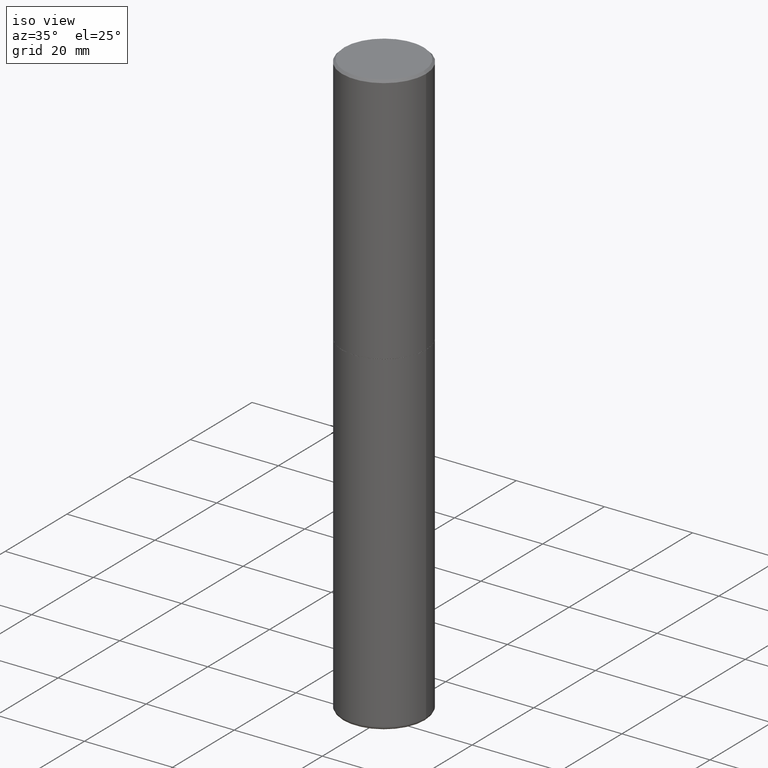
[diagram: clean part render]
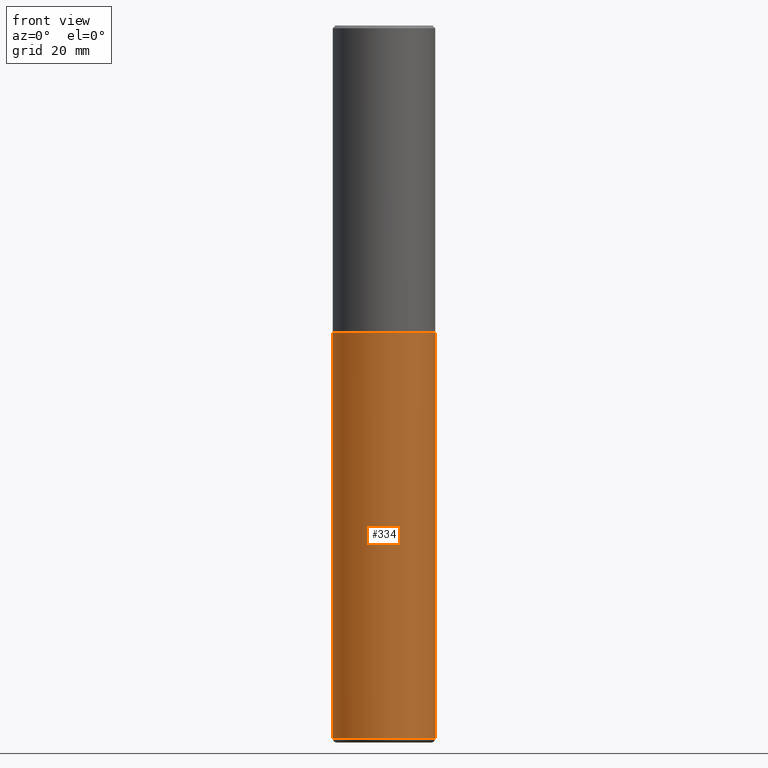
[diagram: tour spotlight — one face highlighted and labeled with its STEP entity id]
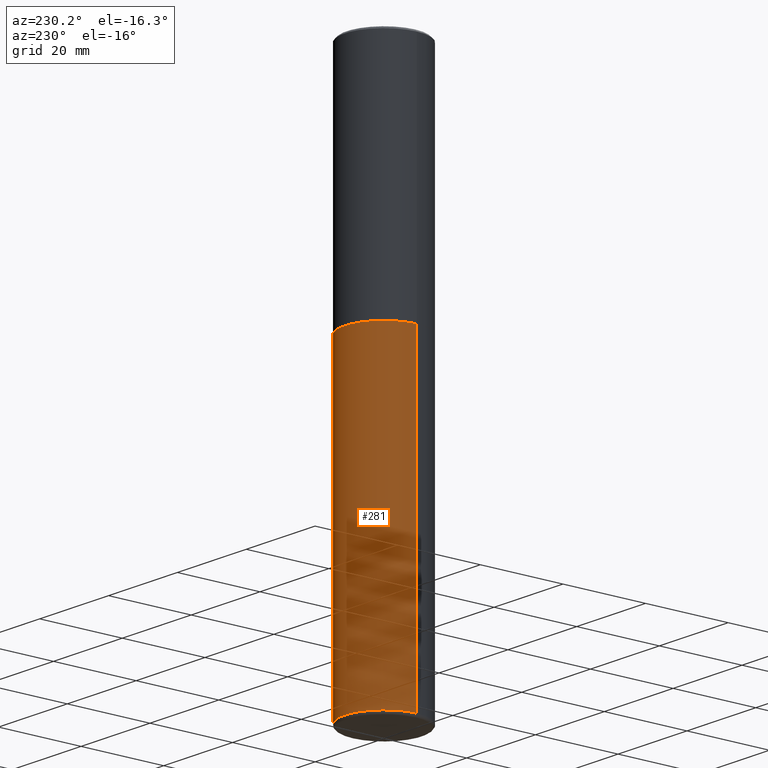
[diagram: tour spotlight — one face highlighted and labeled with its STEP entity id]
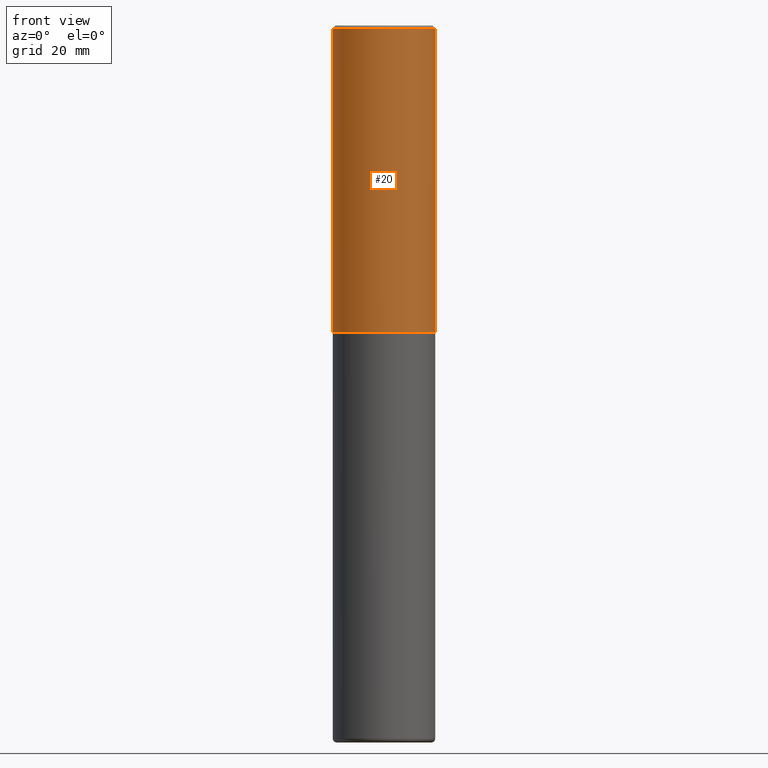
[diagram: tour spotlight — one face highlighted and labeled with its STEP entity id]
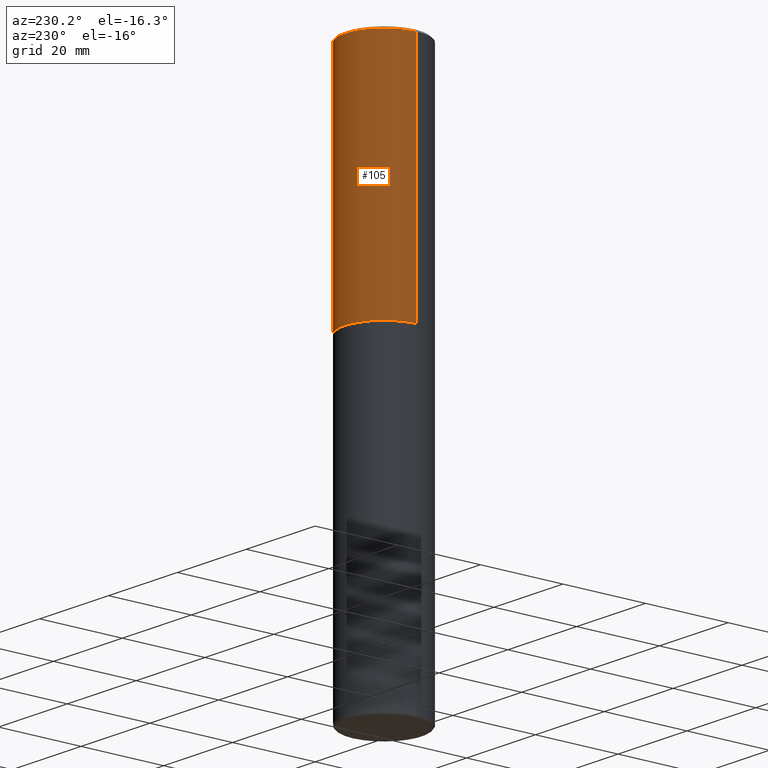
[diagram: tour spotlight — one face highlighted and labeled with its STEP entity id]
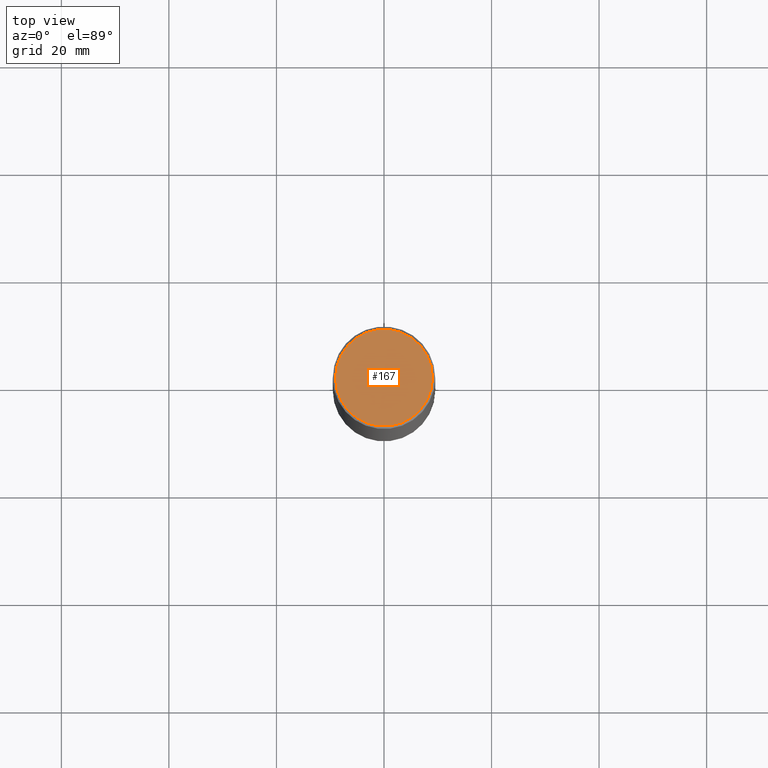
[diagram: tour spotlight — one face highlighted and labeled with its STEP entity id]
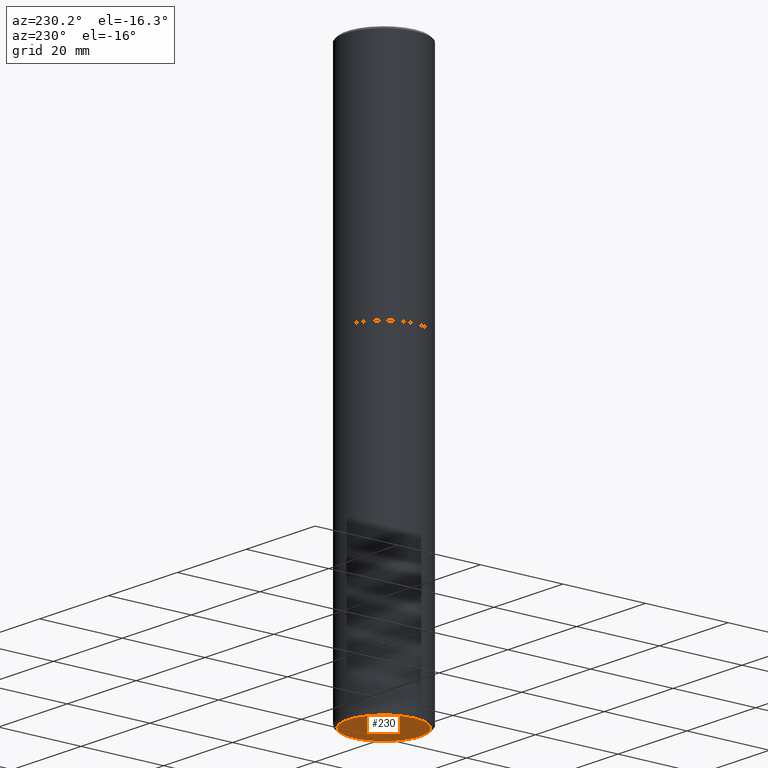
[diagram: tour spotlight — one face highlighted and labeled with its STEP entity id]
A machine part: a face-by-face anatomy tour. The part has 14 B-rep faces; the first image is the clean iso view, then the 6 largest visible faces are spotlighted one at a time (largest first), each with its STEP entity span.

Face 1 — front view, entity #334. In plain terms, the highlighted cylindrical surface (partial cylindrical patch) has radius 9.525 mm, axis along (-0, 0, 1).
Definition (entity closure, byte-faithful):
#1 = EDGE_LOOP ( 'NONE', ( #189, #202, #184, #107 ) ) ;
#21 = FACE_OUTER_BOUND ( 'NONE', #1, .T. ) ;
#72 = DIRECTION ( 'NONE',  ( -2.445468806185136597E-29, 3.491481338843145583E-15, 1.000000000000000000 ) ) ;
#74 = CARTESIAN_POINT ( 'NONE',  ( -0.3750000000000000555, 2.664535259100376091E-15, -1.844600658845589598E-29 ) ) ;
#88 = EDGE_CURVE ( 'NONE', #392, #292, #267, .T. ) ;
#94 = EDGE_CURVE ( 'NONE', #327, #392, #208, .T. ) ;
#104 = VERTEX_POINT ( 'NONE', #113 ) ;
#107 = ORIENTED_EDGE ( 'NONE', *, *, #88, .F. ) ;
#113 = CARTESIAN_POINT ( 'NONE',  ( 0.3750000000000001110, -2.084414359289356356E-14, -5.219999999999997975 ) ) ;
#118 = CIRCLE ( 'NONE', #127, 0.3750000000000000555 ) ;
#122 = EDGE_CURVE ( 'NONE', #327, #104, #118, .T. ) ;
#124 = CARTESIAN_POINT ( 'NONE',  ( -0.3750000000000000555, -1.037614754147877030E-14, -2.250000000000000000 ) ) ;
#127 = AXIS2_PLACEMENT_3D ( 'NONE', #396, #307, #244 ) ;
#150 = CARTESIAN_POINT ( 'NONE',  ( 5.502304813916557343E-29, -7.855833012397078448E-15, -2.250000000000000000 ) ) ;
#151 = CARTESIAN_POINT ( 'NONE',  ( 0.000000000000000000, 0.000000000000000000, 0.000000000000000000 ) ) ;
#152 = CARTESIAN_POINT ( 'NONE',  ( -0.3750000000000001110, -1.556099732966083785E-14, -5.219999999999997975 ) ) ;
#184 = ORIENTED_EDGE ( 'NONE', *, *, #265, .T. ) ;
#188 = AXIS2_PLACEMENT_3D ( 'NONE', #150, #72, #337 ) ;
#189 = ORIENTED_EDGE ( 'NONE', *, *, #94, .F. ) ;
#202 = ORIENTED_EDGE ( 'NONE', *, *, #122, .T. ) ;
#208 = LINE ( 'NONE', #74, #360 ) ;
#222 = CARTESIAN_POINT ( 'NONE',  ( 0.3750000000000000555, -2.618611004132350016E-15, 1.828566290923476203E-29 ) ) ;
#240 = AXIS2_PLACEMENT_3D ( 'NONE', #151, #379, #254 ) ;
#244 = DIRECTION ( 'NONE',  ( 1.000000000000000000, -6.982962677686261189E-15, 0.000000000000000000 ) ) ;
#245 = DIRECTION ( 'NONE',  ( -2.445468806185136877E-29, 3.491481338843145188E-15, 1.000000000000000000 ) ) ;
#254 = DIRECTION ( 'NONE',  ( 1.000000000000000000, -6.982962677686265922E-15, 4.876176775795935793E-29 ) ) ;
#265 = EDGE_CURVE ( 'NONE', #104, #292, #311, .T. ) ;
#267 = CIRCLE ( 'NONE', #188, 0.3750000000000000555 ) ;
#286 = CYLINDRICAL_SURFACE ( 'NONE', #240, 0.3750000000000000555 ) ;
#291 = VECTOR ( 'NONE', #403, 39.37007874015748143 ) ;
#292 = VERTEX_POINT ( 'NONE', #346 ) ;
#307 = DIRECTION ( 'NONE',  ( -2.445468806185136597E-29, 3.491481338843145583E-15, 1.000000000000000000 ) ) ;
#311 = LINE ( 'NONE', #222, #291 ) ;
#327 = VERTEX_POINT ( 'NONE', #152 ) ;
#334 = ADVANCED_FACE ( 'NONE', ( #21 ), #286, .T. ) ;
#337 = DIRECTION ( 'NONE',  ( 1.000000000000000000, -6.982962677686264344E-15, 0.000000000000000000 ) ) ;
#346 = CARTESIAN_POINT ( 'NONE',  ( 0.3750000000000000555, -1.047444401652942689E-14, -2.250000000000000000 ) ) ;
#360 = VECTOR ( 'NONE', #245, 39.37007874015748143 ) ;
#379 = DIRECTION ( 'NONE',  ( -2.445468806185136597E-29, 3.491481338843145583E-15, 1.000000000000000000 ) ) ;
#392 = VERTEX_POINT ( 'NONE', #124 ) ;
#396 = CARTESIAN_POINT ( 'NONE',  ( 1.276534716828640801E-28, -1.822553258876121354E-14, -5.219999999999997975 ) ) ;
#403 = DIRECTION ( 'NONE',  ( -2.445468806185136877E-29, 3.491481338843145188E-15, 1.000000000000000000 ) ) ;

Face 2 — auxiliary view, entity #281. In plain terms, the highlighted cylindrical surface (partial cylindrical patch) has radius 9.525 mm, axis along (-0, 0, 1).
Definition (entity closure, byte-faithful):
#7 = EDGE_LOOP ( 'NONE', ( #255, #357, #27, #65 ) ) ;
#25 = DIRECTION ( 'NONE',  ( 1.000000000000000000, -6.982962677686265922E-15, 4.876176775795935793E-29 ) ) ;
#26 = EDGE_CURVE ( 'NONE', #292, #392, #406, .T. ) ;
#27 = ORIENTED_EDGE ( 'NONE', *, *, #26, .F. ) ;
#36 = DIRECTION ( 'NONE',  ( -2.445468806185136597E-29, 3.491481338843145583E-15, 1.000000000000000000 ) ) ;
#65 = ORIENTED_EDGE ( 'NONE', *, *, #265, .F. ) ;
#74 = CARTESIAN_POINT ( 'NONE',  ( -0.3750000000000000555, 2.664535259100376091E-15, -1.844600658845589598E-29 ) ) ;
#85 = DIRECTION ( 'NONE',  ( -2.445468806185136597E-29, 3.491481338843145583E-15, 1.000000000000000000 ) ) ;
#87 = CYLINDRICAL_SURFACE ( 'NONE', #354, 0.3750000000000000555 ) ;
#94 = EDGE_CURVE ( 'NONE', #327, #392, #208, .T. ) ;
#104 = VERTEX_POINT ( 'NONE', #113 ) ;
#110 = AXIS2_PLACEMENT_3D ( 'NONE', #186, #315, #410 ) ;
#113 = CARTESIAN_POINT ( 'NONE',  ( 0.3750000000000001110, -2.084414359289356356E-14, -5.219999999999997975 ) ) ;
#124 = CARTESIAN_POINT ( 'NONE',  ( -0.3750000000000000555, -1.037614754147877030E-14, -2.250000000000000000 ) ) ;
#125 = CARTESIAN_POINT ( 'NONE',  ( 0.000000000000000000, 0.000000000000000000, 0.000000000000000000 ) ) ;
#141 = CIRCLE ( 'NONE', #110, 0.3750000000000000555 ) ;
#152 = CARTESIAN_POINT ( 'NONE',  ( -0.3750000000000001110, -1.556099732966083785E-14, -5.219999999999997975 ) ) ;
#186 = CARTESIAN_POINT ( 'NONE',  ( 1.276534716828640801E-28, -1.822553258876121354E-14, -5.219999999999997975 ) ) ;
#208 = LINE ( 'NONE', #74, #360 ) ;
#222 = CARTESIAN_POINT ( 'NONE',  ( 0.3750000000000000555, -2.618611004132350016E-15, 1.828566290923476203E-29 ) ) ;
#245 = DIRECTION ( 'NONE',  ( -2.445468806185136877E-29, 3.491481338843145188E-15, 1.000000000000000000 ) ) ;
#253 = FACE_OUTER_BOUND ( 'NONE', #7, .T. ) ;
#255 = ORIENTED_EDGE ( 'NONE', *, *, #272, .T. ) ;
#265 = EDGE_CURVE ( 'NONE', #104, #292, #311, .T. ) ;
#272 = EDGE_CURVE ( 'NONE', #104, #327, #141, .T. ) ;
#281 = ADVANCED_FACE ( 'NONE', ( #253 ), #87, .T. ) ;
#291 = VECTOR ( 'NONE', #403, 39.37007874015748143 ) ;
#292 = VERTEX_POINT ( 'NONE', #346 ) ;
#297 = DIRECTION ( 'NONE',  ( 1.000000000000000000, -6.982962677686264344E-15, 0.000000000000000000 ) ) ;
#308 = AXIS2_PLACEMENT_3D ( 'NONE', #324, #36, #297 ) ;
#311 = LINE ( 'NONE', #222, #291 ) ;
#315 = DIRECTION ( 'NONE',  ( -2.445468806185136597E-29, 3.491481338843145583E-15, 1.000000000000000000 ) ) ;
#324 = CARTESIAN_POINT ( 'NONE',  ( 5.502304813916557343E-29, -7.855833012397078448E-15, -2.250000000000000000 ) ) ;
#327 = VERTEX_POINT ( 'NONE', #152 ) ;
#346 = CARTESIAN_POINT ( 'NONE',  ( 0.3750000000000000555, -1.047444401652942689E-14, -2.250000000000000000 ) ) ;
#354 = AXIS2_PLACEMENT_3D ( 'NONE', #125, #85, #25 ) ;
#357 = ORIENTED_EDGE ( 'NONE', *, *, #94, .T. ) ;
#360 = VECTOR ( 'NONE', #245, 39.37007874015748143 ) ;
#392 = VERTEX_POINT ( 'NONE', #124 ) ;
#403 = DIRECTION ( 'NONE',  ( -2.445468806185136877E-29, 3.491481338843145188E-15, 1.000000000000000000 ) ) ;
#406 = CIRCLE ( 'NONE', #308, 0.3750000000000000555 ) ;
#410 = DIRECTION ( 'NONE',  ( 1.000000000000000000, -6.982962677686261189E-15, 0.000000000000000000 ) ) ;

Face 3 — front view, entity #20. In plain terms, the highlighted cylindrical surface (partial cylindrical patch) has radius 9.525 mm, axis along (-0, 0, 1).
Definition (entity closure, byte-faithful):
#6 = CARTESIAN_POINT ( 'NONE',  ( 0.3750000000000001665, -2.618611004132351200E-15, 1.828566290923476763E-29 ) ) ;
#10 = VECTOR ( 'NONE', #359, 39.37007874015748143 ) ;
#13 = CARTESIAN_POINT ( 'NONE',  ( 0.3750000000000000555, -2.642516375941188029E-15, -0.02000000000000008715 ) ) ;
#20 = ADVANCED_FACE ( 'NONE', ( #355 ), #64, .T. ) ;
#32 = EDGE_CURVE ( 'NONE', #98, #133, #391, .T. ) ;
#34 = DIRECTION ( 'NONE',  ( -2.445468806185136597E-29, 3.491481338843145583E-15, 1.000000000000000000 ) ) ;
#55 = ORIENTED_EDGE ( 'NONE', *, *, #418, .T. ) ;
#64 = CYLINDRICAL_SURFACE ( 'NONE', #257, 0.3750000000000001665 ) ;
#66 = CARTESIAN_POINT ( 'NONE',  ( 5.499859345110371740E-29, -7.852341531058233864E-15, -2.249000000000000110 ) ) ;
#82 = DIRECTION ( 'NONE',  ( -2.445468806185136597E-29, 3.491481338843145583E-15, 1.000000000000000000 ) ) ;
#98 = VERTEX_POINT ( 'NONE', #115 ) ;
#115 = CARTESIAN_POINT ( 'NONE',  ( 0.3750000000000002776, -1.047095253519058704E-14, -2.249000000000000110 ) ) ;
#133 = VERTEX_POINT ( 'NONE', #13 ) ;
#144 = DIRECTION ( 'NONE',  ( -2.445468806185136877E-29, 3.491481338843145188E-15, 1.000000000000000000 ) ) ;
#158 = EDGE_CURVE ( 'NONE', #320, #356, #333, .T. ) ;
#170 = DIRECTION ( 'NONE',  ( 1.000000000000000000, -6.982962677686266711E-15, 4.876176775795935793E-29 ) ) ;
#175 = CARTESIAN_POINT ( 'NONE',  ( -0.3750000000000001665, 2.664535259100376880E-15, -1.844600658845590439E-29 ) ) ;
#198 = DIRECTION ( 'NONE',  ( 1.000000000000000000, -6.982962677686267499E-15, 0.000000000000000000 ) ) ;
#204 = CIRCLE ( 'NONE', #361, 0.3750000000000002776 ) ;
#215 = DIRECTION ( 'NONE',  ( 1.000000000000000000, -6.982962677686265922E-15, 0.000000000000000000 ) ) ;
#223 = AXIS2_PLACEMENT_3D ( 'NONE', #317, #82, #215 ) ;
#257 = AXIS2_PLACEMENT_3D ( 'NONE', #322, #34, #170 ) ;
#258 = ORIENTED_EDGE ( 'NONE', *, *, #158, .F. ) ;
#264 = DIRECTION ( 'NONE',  ( -2.445468806185136597E-29, 3.491481338843145583E-15, 1.000000000000000000 ) ) ;
#269 = ORIENTED_EDGE ( 'NONE', *, *, #304, .F. ) ;
#289 = CARTESIAN_POINT ( 'NONE',  ( -0.3750000000000002776, -1.296550319817168545E-15, -2.249000000000000110 ) ) ;
#295 = EDGE_LOOP ( 'NONE', ( #258, #55, #386, #269 ) ) ;
#304 = EDGE_CURVE ( 'NONE', #356, #133, #400, .T. ) ;
#313 = CARTESIAN_POINT ( 'NONE',  ( -0.3750000000000000555, 2.548781377355486718E-15, -0.02000000000000008715 ) ) ;
#317 = CARTESIAN_POINT ( 'NONE',  ( 4.890937612370294178E-31, -6.982962677686321191E-17, -0.02000000000000008715 ) ) ;
#320 = VERTEX_POINT ( 'NONE', #289 ) ;
#322 = CARTESIAN_POINT ( 'NONE',  ( 0.000000000000000000, 0.000000000000000000, 0.000000000000000000 ) ) ;
#333 = LINE ( 'NONE', #175, #374 ) ;
#355 = FACE_OUTER_BOUND ( 'NONE', #295, .T. ) ;
#356 = VERTEX_POINT ( 'NONE', #313 ) ;
#359 = DIRECTION ( 'NONE',  ( -2.445468806185136877E-29, 3.491481338843145188E-15, 1.000000000000000000 ) ) ;
#361 = AXIS2_PLACEMENT_3D ( 'NONE', #66, #264, #198 ) ;
#374 = VECTOR ( 'NONE', #144, 39.37007874015748143 ) ;
#386 = ORIENTED_EDGE ( 'NONE', *, *, #32, .T. ) ;
#391 = LINE ( 'NONE', #6, #10 ) ;
#400 = CIRCLE ( 'NONE', #223, 0.3750000000000000555 ) ;
#418 = EDGE_CURVE ( 'NONE', #320, #98, #204, .T. ) ;

Face 4 — auxiliary view, entity #105. In plain terms, the highlighted cylindrical surface (partial cylindrical patch) has radius 9.525 mm, axis along (-0, 0, 1).
Definition (entity closure, byte-faithful):
#6 = CARTESIAN_POINT ( 'NONE',  ( 0.3750000000000001665, -2.618611004132351200E-15, 1.828566290923476763E-29 ) ) ;
#9 = CARTESIAN_POINT ( 'NONE',  ( 0.000000000000000000, 0.000000000000000000, 0.000000000000000000 ) ) ;
#10 = VECTOR ( 'NONE', #359, 39.37007874015748143 ) ;
#13 = CARTESIAN_POINT ( 'NONE',  ( 0.3750000000000000555, -2.642516375941188029E-15, -0.02000000000000008715 ) ) ;
#14 = CARTESIAN_POINT ( 'NONE',  ( 4.890937612370294178E-31, -6.982962677686321191E-17, -0.02000000000000008715 ) ) ;
#19 = DIRECTION ( 'NONE',  ( -2.445468806185136597E-29, 3.491481338843145583E-15, 1.000000000000000000 ) ) ;
#32 = EDGE_CURVE ( 'NONE', #98, #133, #391, .T. ) ;
#60 = ORIENTED_EDGE ( 'NONE', *, *, #158, .T. ) ;
#77 = FACE_OUTER_BOUND ( 'NONE', #139, .T. ) ;
#98 = VERTEX_POINT ( 'NONE', #115 ) ;
#105 = ADVANCED_FACE ( 'NONE', ( #77 ), #280, .T. ) ;
#115 = CARTESIAN_POINT ( 'NONE',  ( 0.3750000000000002776, -1.047095253519058704E-14, -2.249000000000000110 ) ) ;
#129 = ORIENTED_EDGE ( 'NONE', *, *, #205, .F. ) ;
#133 = VERTEX_POINT ( 'NONE', #13 ) ;
#134 = CIRCLE ( 'NONE', #367, 0.3750000000000000555 ) ;
#139 = EDGE_LOOP ( 'NONE', ( #411, #60, #129, #252 ) ) ;
#144 = DIRECTION ( 'NONE',  ( -2.445468806185136877E-29, 3.491481338843145188E-15, 1.000000000000000000 ) ) ;
#145 = DIRECTION ( 'NONE',  ( -2.445468806185136597E-29, 3.491481338843145583E-15, 1.000000000000000000 ) ) ;
#158 = EDGE_CURVE ( 'NONE', #320, #356, #333, .T. ) ;
#171 = EDGE_CURVE ( 'NONE', #98, #320, #348, .T. ) ;
#175 = CARTESIAN_POINT ( 'NONE',  ( -0.3750000000000001665, 2.664535259100376880E-15, -1.844600658845590439E-29 ) ) ;
#178 = DIRECTION ( 'NONE',  ( 1.000000000000000000, -6.982962677686266711E-15, 4.876176775795935793E-29 ) ) ;
#205 = EDGE_CURVE ( 'NONE', #133, #356, #134, .T. ) ;
#248 = CARTESIAN_POINT ( 'NONE',  ( 5.499859345110371740E-29, -7.852341531058233864E-15, -2.249000000000000110 ) ) ;
#252 = ORIENTED_EDGE ( 'NONE', *, *, #32, .F. ) ;
#274 = AXIS2_PLACEMENT_3D ( 'NONE', #248, #306, #362 ) ;
#276 = DIRECTION ( 'NONE',  ( 1.000000000000000000, -6.982962677686265922E-15, 0.000000000000000000 ) ) ;
#280 = CYLINDRICAL_SURFACE ( 'NONE', #394, 0.3750000000000001665 ) ;
#289 = CARTESIAN_POINT ( 'NONE',  ( -0.3750000000000002776, -1.296550319817168545E-15, -2.249000000000000110 ) ) ;
#306 = DIRECTION ( 'NONE',  ( -2.445468806185136597E-29, 3.491481338843145583E-15, 1.000000000000000000 ) ) ;
#313 = CARTESIAN_POINT ( 'NONE',  ( -0.3750000000000000555, 2.548781377355486718E-15, -0.02000000000000008715 ) ) ;
#320 = VERTEX_POINT ( 'NONE', #289 ) ;
#333 = LINE ( 'NONE', #175, #374 ) ;
#348 = CIRCLE ( 'NONE', #274, 0.3750000000000002776 ) ;
#356 = VERTEX_POINT ( 'NONE', #313 ) ;
#359 = DIRECTION ( 'NONE',  ( -2.445468806185136877E-29, 3.491481338843145188E-15, 1.000000000000000000 ) ) ;
#362 = DIRECTION ( 'NONE',  ( 1.000000000000000000, -6.982962677686267499E-15, 0.000000000000000000 ) ) ;
#367 = AXIS2_PLACEMENT_3D ( 'NONE', #14, #145, #276 ) ;
#374 = VECTOR ( 'NONE', #144, 39.37007874015748143 ) ;
#391 = LINE ( 'NONE', #6, #10 ) ;
#394 = AXIS2_PLACEMENT_3D ( 'NONE', #9, #19, #178 ) ;
#411 = ORIENTED_EDGE ( 'NONE', *, *, #171, .T. ) ;

Face 5 — top view, entity #167. In plain terms, the highlighted planar face has unit normal (0, -0, -1).
Definition (entity closure, byte-faithful):
#15 = FACE_OUTER_BOUND ( 'NONE', #131, .T. ) ;
#39 = DIRECTION ( 'NONE',  ( 2.438088387897960049E-29, -3.491481338843145188E-15, -1.000000000000000000 ) ) ;
#42 = PLANE ( 'NONE',  #312 ) ;
#49 = CARTESIAN_POINT ( 'NONE',  ( -0.3550000000000001488, 2.513866563967055858E-15, -1.622034746238331006E-16 ) ) ;
#54 = DIRECTION ( 'NONE',  ( -2.445468806185136597E-29, 3.491481338843145583E-15, 1.000000000000000000 ) ) ;
#63 = CARTESIAN_POINT ( 'NONE',  ( 0.3550000000000001488, -2.538996582575041837E-15, -1.622034746237980703E-16 ) ) ;
#67 = ORIENTED_EDGE ( 'NONE', *, *, #404, .T. ) ;
#89 = CARTESIAN_POINT ( 'NONE',  ( 3.966635374473835042E-45, -5.663304047445699634E-31, -1.622034746238156224E-16 ) ) ;
#120 = AXIS2_PLACEMENT_3D ( 'NONE', #89, #200, #233 ) ;
#126 = VERTEX_POINT ( 'NONE', #49 ) ;
#131 = EDGE_LOOP ( 'NONE', ( #316, #67 ) ) ;
#167 = ADVANCED_FACE ( 'NONE', ( #15 ), #42, .F. ) ;
#191 = CARTESIAN_POINT ( 'NONE',  ( 3.966635374473835042E-45, -5.663304047445699634E-31, -1.622034746238156224E-16 ) ) ;
#200 = DIRECTION ( 'NONE',  ( -2.445468806185136597E-29, 3.491481338843145583E-15, 1.000000000000000000 ) ) ;
#213 = CARTESIAN_POINT ( 'NONE',  ( 2.478951750578625787E-15, 0.3550000000000001488, -1.320577612601225142E-15 ) ) ;
#214 = CIRCLE ( 'NONE', #298, 0.3550000000000001488 ) ;
#217 = DIRECTION ( 'NONE',  ( 1.000000000000000000, -6.982962677686266711E-15, 4.878367520217860717E-29 ) ) ;
#233 = DIRECTION ( 'NONE',  ( 1.000000000000000000, -6.982962677686266711E-15, 4.878367520217860717E-29 ) ) ;
#241 = EDGE_CURVE ( 'NONE', #126, #409, #214, .T. ) ;
#298 = AXIS2_PLACEMENT_3D ( 'NONE', #191, #54, #217 ) ;
#305 = DIRECTION ( 'NONE',  ( -1.000000000000000000, 6.982962677686265922E-15, -4.876176775795935793E-29 ) ) ;
#312 = AXIS2_PLACEMENT_3D ( 'NONE', #213, #39, #305 ) ;
#316 = ORIENTED_EDGE ( 'NONE', *, *, #241, .T. ) ;
#340 = CIRCLE ( 'NONE', #120, 0.3550000000000001488 ) ;
#404 = EDGE_CURVE ( 'NONE', #409, #126, #340, .T. ) ;
#409 = VERTEX_POINT ( 'NONE', #63 ) ;

Face 6 — auxiliary view, entity #230. In plain terms, the highlighted planar face has unit normal (0, -0, -1).
Definition (entity closure, byte-faithful):
#28 = PLANE ( 'NONE',  #179 ) ;
#56 = AXIS2_PLACEMENT_3D ( 'NONE', #364, #407, #121 ) ;
#58 = CARTESIAN_POINT ( 'NONE',  ( 2.445042845561001673E-28, -1.701637067491864391E-15, -5.249999999999999112 ) ) ;
#81 = DIRECTION ( 'NONE',  ( -2.445468806185136597E-29, 3.491481338843145583E-15, 1.000000000000000000 ) ) ;
#116 = FACE_OUTER_BOUND ( 'NONE', #273, .T. ) ;
#117 = DIRECTION ( 'NONE',  ( 2.438088387897960049E-29, -3.491481338843145188E-15, -1.000000000000000000 ) ) ;
#121 = DIRECTION ( 'NONE',  ( 1.000000000000000000, -6.982962677686261977E-15, 0.000000000000000000 ) ) ;
#179 = AXIS2_PLACEMENT_3D ( 'NONE', #58, #117, #349 ) ;
#193 = CARTESIAN_POINT ( 'NONE',  ( 0.3450000000000000289, -2.073939915272827019E-14, -5.249999999999999112 ) ) ;
#216 = EDGE_CURVE ( 'NONE', #301, #239, #328, .T. ) ;
#225 = EDGE_CURVE ( 'NONE', #239, #301, #250, .T. ) ;
#228 = ORIENTED_EDGE ( 'NONE', *, *, #225, .F. ) ;
#230 = ADVANCED_FACE ( 'NONE', ( #116 ), #28, .T. ) ;
#239 = VERTEX_POINT ( 'NONE', #193 ) ;
#250 = CIRCLE ( 'NONE', #56, 0.3450000000000000289 ) ;
#273 = EDGE_LOOP ( 'NONE', ( #228, #299 ) ) ;
#278 = CARTESIAN_POINT ( 'NONE',  ( 1.283871123247196489E-28, -1.833027702892651007E-14, -5.249999999999999112 ) ) ;
#285 = AXIS2_PLACEMENT_3D ( 'NONE', #278, #81, #331 ) ;
#299 = ORIENTED_EDGE ( 'NONE', *, *, #216, .F. ) ;
#301 = VERTEX_POINT ( 'NONE', #343 ) ;
#328 = CIRCLE ( 'NONE', #285, 0.3450000000000000289 ) ;
#331 = DIRECTION ( 'NONE',  ( 1.000000000000000000, -6.982962677686261977E-15, 0.000000000000000000 ) ) ;
#343 = CARTESIAN_POINT ( 'NONE',  ( -0.3450000000000000289, -1.571995096010750044E-14, -5.249999999999999112 ) ) ;
#349 = DIRECTION ( 'NONE',  ( -1.000000000000000000, 6.982962677686265922E-15, -4.876176775795935793E-29 ) ) ;
#364 = CARTESIAN_POINT ( 'NONE',  ( 1.283871123247196489E-28, -1.833027702892651007E-14, -5.249999999999999112 ) ) ;
#407 = DIRECTION ( 'NONE',  ( -2.445468806185136597E-29, 3.491481338843145583E-15, 1.000000000000000000 ) ) ;